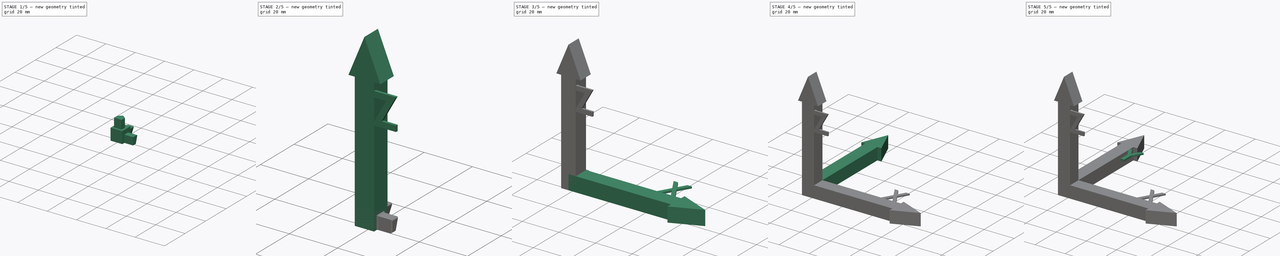
[diagram: build sequence overview — one tinted view per stage of 5, left to right]
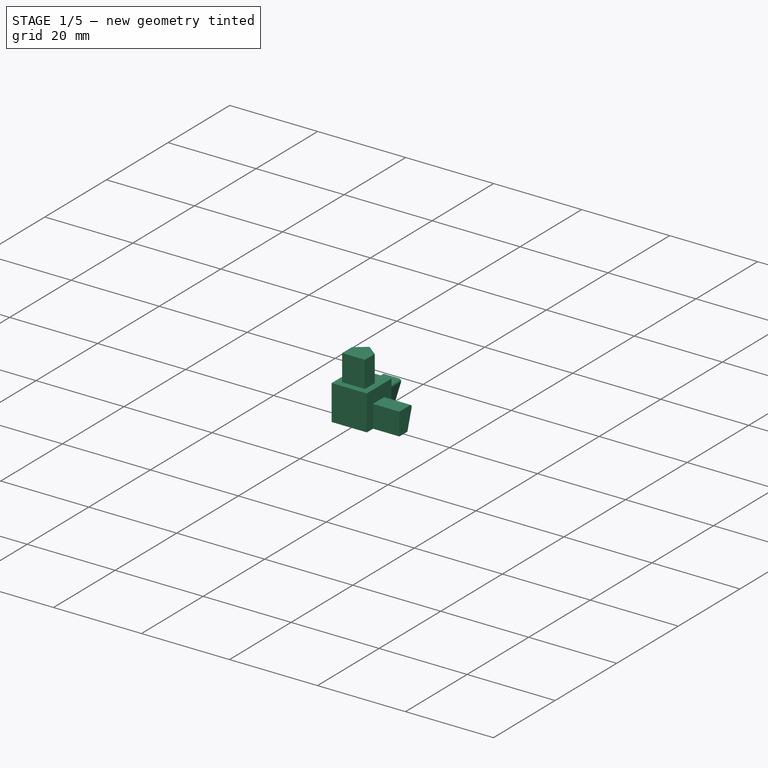
[diagram: stage 1 of 5 — iso view after this stage's code; geometry added in this stage tinted green]
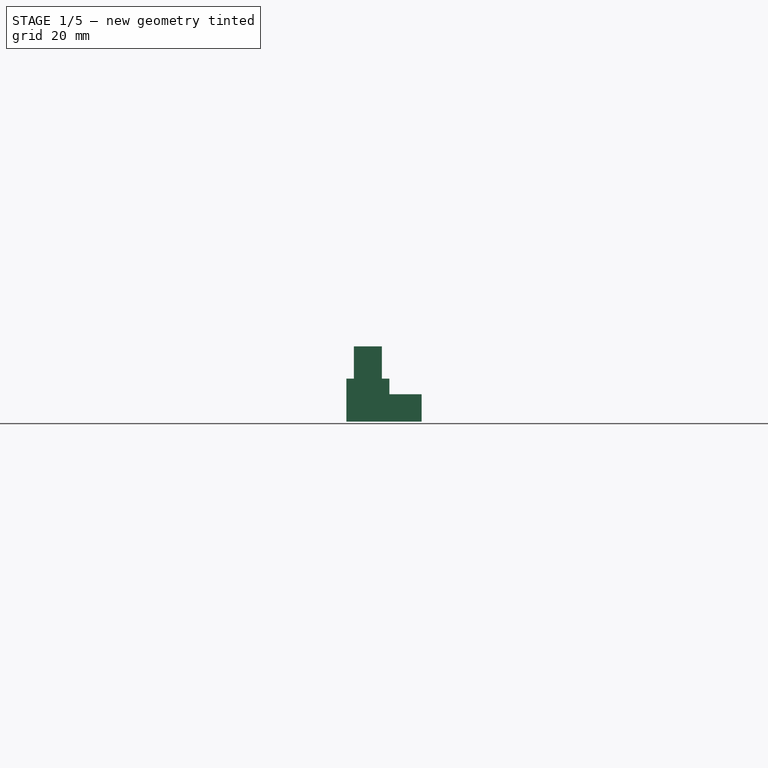
[diagram: stage 1 of 5 — front view after this stage's code; geometry added in this stage tinted green]
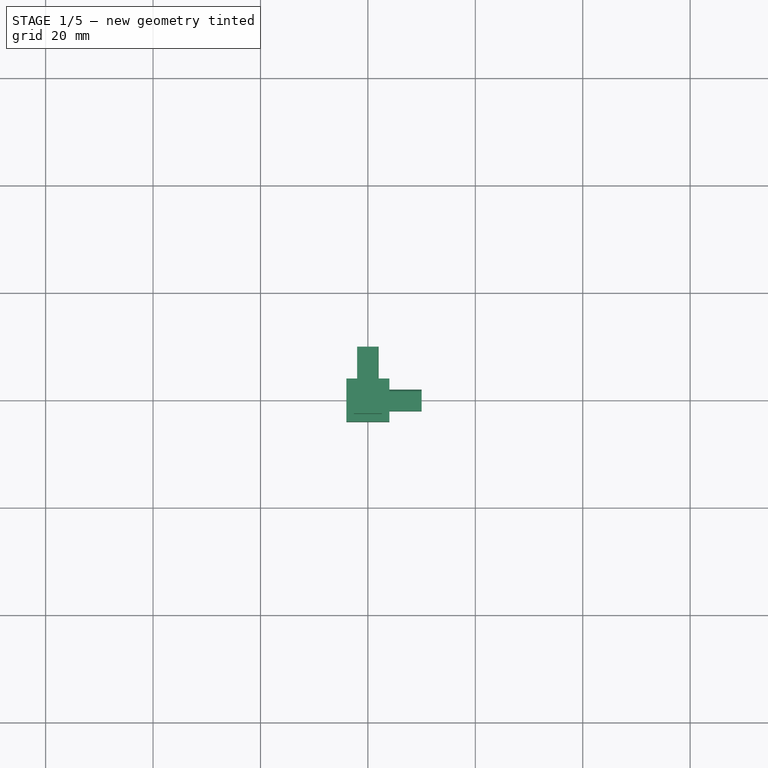
[diagram: stage 1 of 5 — top view after this stage's code; geometry added in this stage tinted green]
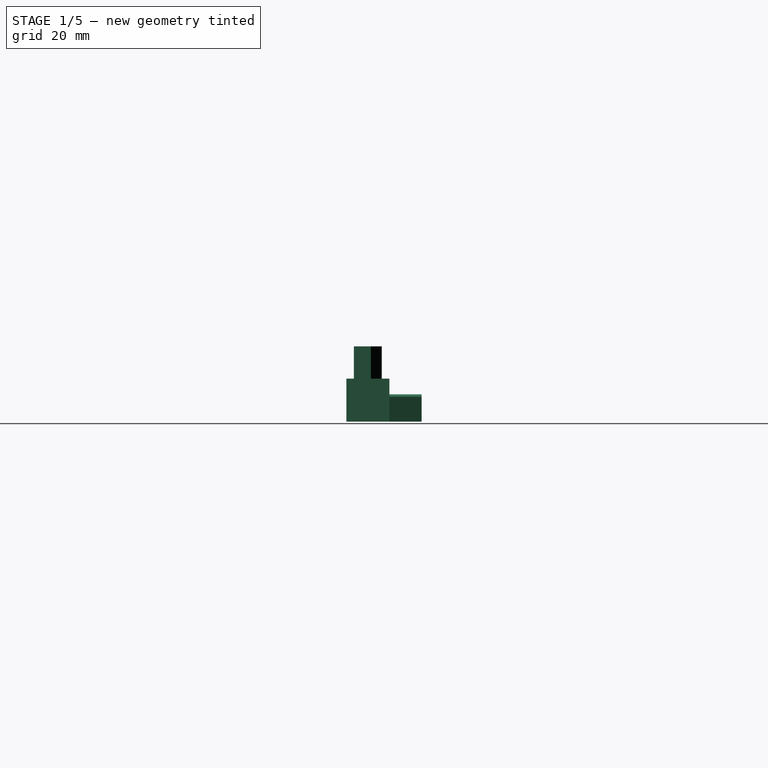
[diagram: stage 1 of 5 — right view after this stage's code; geometry added in this stage tinted green]
FCSTD DOCUMENT  (FreeCAD 0.19R24367 (Git))
Label: axis-cross
Comment: FreeCAD-models by mgesteiro -- https://github.com/mgesteiro/FreeCAD-models
License: Creative Commons Attribution-ShareAlike
LicenseURL: http://creativecommons.org/licenses/by-sa/4.0/
objects: Sketcher::SketchObject×13, PartDesign::Pad×10, PartDesign::Chamfer×8, PartDesign::Body×4, PartDesign::Pocket×3, Spreadsheet::Sheet×1
note: 59 computed .brp shape members not serialized (recipe doc carries the construction recipe); baked Part::Feature solids carry a one-line shape summary decoded from their .brp

FEATURE [PartDesign::Pad] Pad006  label="Pad-joint-box"
  Direction = (1,1,1)
  Length = 8
  Length2 = 100
  Profile = -> Sketch011
  Refine = true
  Type = 0
FEATURE [Sketcher::SketchObject] Sketch012  label="Sketch-shank-X"
  FullyConstrained = true
  MapMode = 5
  Placement = pos=(4,0,0) rot=(0.57735,0.57735,0.57735;2.0944rad)
  Support = -> [Pad006]
  expr: Constraints[22] = Spreadsheet.xtolerance
  expr: Constraints[24] = Spreadsheet.xtolerance
  sketch-geometry (9):
    g0: LineSegment StartX=-2.1 StartY=0 StartZ=0 EndX=-2.1 EndY=5.2 EndZ=0
    g1: LineSegment StartX=-2.1 StartY=5.2 StartZ=0 EndX=1.5 EndY=5.2 EndZ=0
    g2: LineSegment StartX=2.07301 StartY=4.42208 StartZ=0 EndX=0.7 EndY=0 EndZ=0
    g3: ArcOfCircle CenterX=1.5 CenterY=4.6 CenterZ=0 NormalX=0 NormalY=0 NormalZ=1 AngleXU=0 Radius=0.6 StartAngle=5.98213 EndAngle=7.85398
    g4: LineSegment StartX=-2 StartY=0 StartZ=0 EndX=-2 EndY=5.1 EndZ=0
    g5: LineSegment StartX=-2 StartY=5.1 StartZ=0 EndX=1.5 EndY=5.1 EndZ=0
    g6: ArcOfCircle CenterX=1.5 CenterY=4.6 CenterZ=0 NormalX=0 NormalY=0 NormalZ=1 AngleXU=0 Radius=0.5 StartAngle=5.98213 EndAngle=7.85398
    g7: LineSegment StartX=1.97751 StartY=4.45174 StartZ=0 EndX=0.595291 EndY=0 EndZ=0
    g8: LineSegment StartX=0.595291 StartY=0 StartZ=0 EndX=-2 EndY=0 EndZ=0
  constraints (25):
    c: Coincident(g0,g1)
    c: DistanceX(g0,g2) = 2.8
    c: Vertical(g0)
    c: Tangent(g1,g3) = 1.5708
    c: Tangent(g2,g3) = 1.5708
    c: DistanceY(g0,g0) = 5.2
    c: Radius(g3) = 0.6
    c: Horizontal(g1)
    c: DistanceX(g1,g1) = 3.6
    c: PointOnObject(g0,g-1)
    c: PointOnObject(g2,g-1)
    c: DistanceX(g0) = -2.1
    c: PointOnObject(g4,g-1)
    c: Vertical(g4)
    c: Coincident(g4,g5)
    c: Horizontal(g5)
    c: Tangent(g5,g6) = 1.5708
    c: Tangent(g6,g7) = 1.5708
    c: Coincident(g7,g8)
    c: Coincident(g8,g4)
    c: Horizontal(g8)
    c: Coincident(g3,g6)
    c: DistanceX(g0,g4) = 0.1
    c: Parallel(g7,g2)
    c: DistanceY(g4,g0) = 0.1
FEATURE [PartDesign::Pad] Pad007  label="Pad-shank-X"
  BaseFeature = -> Pad006
  Direction = (1,1,1)
  Length = 6
  Length2 = 100
  Profile = -> Sketch012
  Refine = true
  Type = 0
FEATURE [Sketcher::SketchObject] Sketch013  label="Sketch-shank-Y"
  FullyConstrained = true
  MapMode = 5
  Placement = pos=(0,4,0) rot=(0,0.707107,0.707107;3.14159rad)
  Support = -> [Pad007]
  expr: Constraints[23] = Spreadsheet.ytolerance
  expr: Constraints[24] = Spreadsheet.ytolerance
  sketch-geometry (9):
    g0: LineSegment StartX=2.1 StartY=0 StartZ=0 EndX=2.1 EndY=5.2 EndZ=0
    g1: LineSegment StartX=2.1 StartY=5.2 StartZ=0 EndX=-1.5 EndY=5.2 EndZ=0
    g2: LineSegment StartX=-2.07301 StartY=4.42208 StartZ=0 EndX=-0.7 EndY=0 EndZ=0
    g3: ArcOfCircle CenterX=-1.5 CenterY=4.6 CenterZ=0 NormalX=0 NormalY=0 NormalZ=1 AngleXU=0 Radius=0.6 StartAngle=1.5708 EndAngle=3.44265
    g4: LineSegment StartX=2 StartY=0 StartZ=0 EndX=2 EndY=5.1 EndZ=0
    g5: LineSegment StartX=2 StartY=5.1 StartZ=0 EndX=-1.5 EndY=5.1 EndZ=0
    g6: ArcOfCircle CenterX=-1.5 CenterY=4.6 CenterZ=0 NormalX=0 NormalY=0 NormalZ=1 AngleXU=0 Radius=0.5 StartAngle=1.5708 EndAngle=3.44265
    g7: LineSegment StartX=-1.97751 StartY=4.45174 StartZ=0 EndX=-0.595291 EndY=0 EndZ=0
    g8: LineSegment StartX=-0.595291 StartY=0 StartZ=0 EndX=2 EndY=0 EndZ=0
  constraints (25):
    c: Coincident(g0,g1)
    c: DistanceX(g2,g0) = 2.8
    c: PointOnObject(g0,g-1)
    c: Vertical(g0)
    c: Horizontal(g1)
    c: DistanceY(g0,g0) = 5.2
    c: Tangent(g2,g3) = -1.5708
    c: Tangent(g1,g3) = -1.5708
    c: Radius(g3) = 0.6
    c: DistanceX(g1,g1) = 3.6
    c: DistanceX(g-1,g0) = 2.1
    c: PointOnObject(g2,g-1)
    c: PointOnObject(g4,g-1)
    c: Vertical(g4)
    c: Coincident(g4,g5)
    c: Horizontal(g5)
    c: Tangent(g5,g6) = -1.5708
    c: Tangent(g6,g7) = -1.5708
    c: Coincident(g7,g8)
    c: Coincident(g8,g4)
    c: Horizontal(g8)
    c: Parallel(g7,g2)
    c: Coincident(g3,g6)
    c: DistanceX(g4,g0) = 0.1
    c: DistanceY(g4,g0) = 0.1
FEATURE [PartDesign::Pad] Pad008  label="Pad-shank-Y"
  BaseFeature = -> Pad007
  Direction = (1,1,1)
  Length = 6
  Length2 = 100
  Profile = -> Sketch013
  Refine = true
  Type = 0
FEATURE [Sketcher::SketchObject] Sketch016  label="Sketch-shank-Z"
  FullyConstrained = true
  MapMode = 5
  Placement = pos=(0,0,8) rot=(0,0,1;0rad)
  Support = -> [Pad008]
  expr: Constraints[28] = Spreadsheet.ztolerance
  expr: Constraints[29] = Spreadsheet.ztolerance
  expr: Constraints[34] = Spreadsheet.ztolerance
  sketch-geometry (13):
    g0: LineSegment StartX=-2.7 StartY=0.6 StartZ=0 EndX=2.7 EndY=0.6 EndZ=0
    g1: LineSegment StartX=2.7 StartY=0.6 StartZ=0 EndX=2.7 EndY=-2.7 EndZ=0
    g2: LineSegment StartX=2.7 StartY=-2.7 StartZ=0 EndX=-2.7 EndY=-2.7 EndZ=0
    g3: LineSegment StartX=-2.7 StartY=-2.7 StartZ=0 EndX=-2.7 EndY=0.6 EndZ=0
    g4: LineSegment StartX=-2.7 StartY=0.6 StartZ=0 EndX=0 EndY=2.7 EndZ=0
    g5: LineSegment StartX=0 StartY=2.7 StartZ=0 EndX=2.7 EndY=0.6 EndZ=0
    g6: LineSegment StartX=0 StartY=2.7 StartZ=0 EndX=0 EndY=-2.7 EndZ=0
    g7: LineSegment StartX=-2.6 StartY=-2.6 StartZ=0 EndX=-2.6 EndY=0.551092 EndZ=0
    g8: LineSegment StartX=-2.6 StartY=0.551092 StartZ=0 EndX=0 EndY=2.57331 EndZ=0
    g9: LineSegment StartX=0 StartY=2.57331 StartZ=0 EndX=2.6 EndY=0.551092 EndZ=0
    g10: LineSegment StartX=2.6 StartY=0.551092 StartZ=0 EndX=2.6 EndY=-2.6 EndZ=0
    g11: LineSegment StartX=2.6 StartY=-2.6 StartZ=0 EndX=-2.6 EndY=-2.6 EndZ=0
    g12: LineSegment StartX=2.6 StartY=0.551092 StartZ=0 EndX=2.66139 EndY=0.630027 EndZ=0
  constraints (35):
    c: Coincident(g0,g1)
    c: Coincident(g1,g2)
    c: Coincident(g2,g3)
    c: Coincident(g3,g0)
    c: Horizontal(g0)
    c: Vertical(g1)
    c: Vertical(g3)
    c: DistanceX(g2,g2) = 5.4
    c: DistanceY(g1,g1) = 3.3
    c: Symmetric(g2,g1,g-2)
    c: Coincident(g3,g4)
    c: PointOnObject(g4,g-2)
    c: Coincident(g4,g5)
    c: Coincident(g5,g1)
    c: Coincident(g6,g4)
    c: PointOnObject(g6,g2)
    c: Symmetric(g6,g4,g-1)
    c: DistanceY(g2,g4) = 5.4
    c: Vertical(g7)
    c: Coincident(g7,g8)
    c: PointOnObject(g8,g6)
    c: Coincident(g8,g9)
    c: Coincident(g9,g10)
    c: Vertical(g10)
    c: Coincident(g10,g11)
    c: Coincident(g11,g7)
    c: Horizontal(g11)
    c: Symmetric(g7,g9,g6)
    c: DistanceX(g2,g7) = 0.1
    c: DistanceY(g2,g7) = 0.1
    c: Parallel(g8,g4)
    c: Coincident(g12,g9)
    c: PointOnObject(g12,g5)
    c: Perpendicular(g5,g12)
    c: Distance(g12) = 0.1
FEATURE [PartDesign::Pad] Pad009  label="Pad-shank-Z"
  BaseFeature = -> Pad008
  Direction = (1,1,1)
  Length = 6
  Length2 = 100
  Profile = -> Sketch016
  Refine = true
  Type = 0
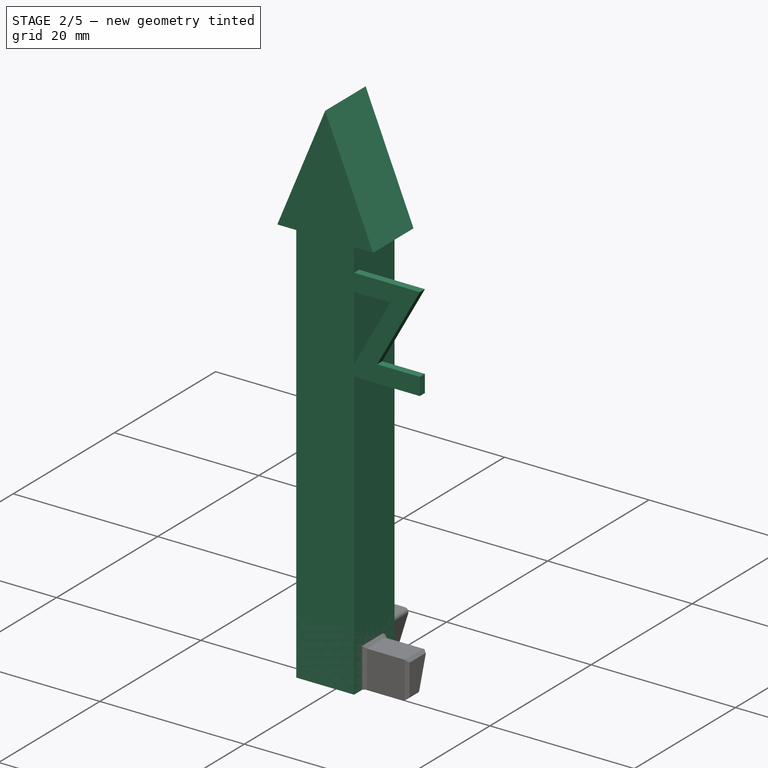
[diagram: stage 2 of 5 — iso view after this stage's code; geometry added in this stage tinted green]
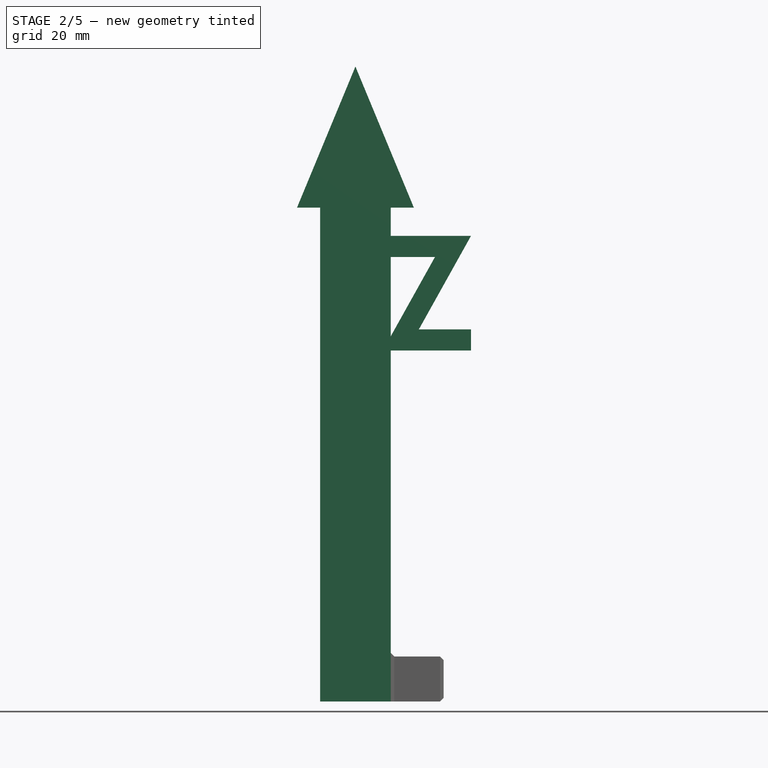
[diagram: stage 2 of 5 — front view after this stage's code; geometry added in this stage tinted green]
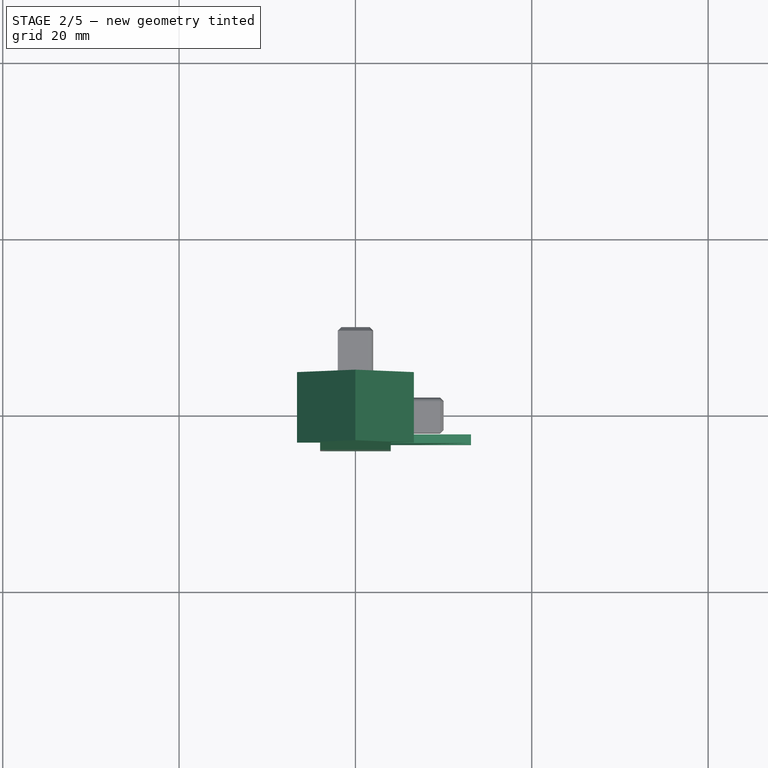
[diagram: stage 2 of 5 — top view after this stage's code; geometry added in this stage tinted green]
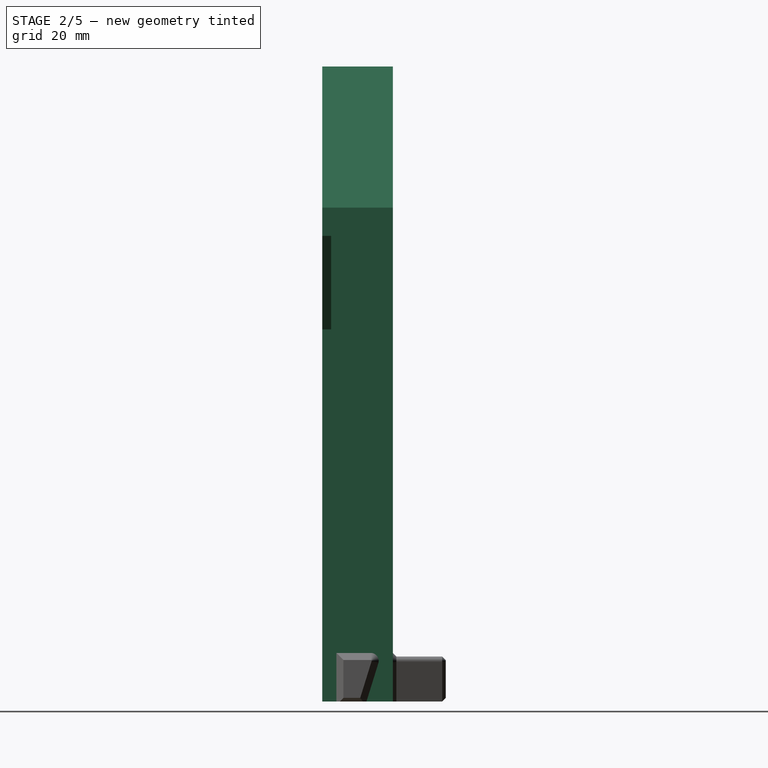
[diagram: stage 2 of 5 — right view after this stage's code; geometry added in this stage tinted green]
FEATURE [Sketcher::SketchObject] Sketch002  label="Sketc-Z-axis"
  FullyConstrained = false
  MapMode = 5
  Placement = pos=(0,0,0) rot=(1,0,0;1.5708rad)
  Support = -> [XZ_Plane002]
  sketch-geometry (9):
    g0: LineSegment StartX=-4 StartY=0 StartZ=0 EndX=4 EndY=0 EndZ=0
    g1: LineSegment StartX=4 StartY=0 StartZ=0 EndX=4 EndY=56 EndZ=0
    g2: LineSegment StartX=4 StartY=56 StartZ=0 EndX=6.62742 EndY=56 EndZ=0
    g3: LineSegment StartX=6.62742 StartY=56 StartZ=0 EndX=0 EndY=72 EndZ=0
    g4: LineSegment StartX=0 StartY=72 StartZ=0 EndX=-6.62742 EndY=56 EndZ=0
    g5: LineSegment StartX=-6.62742 StartY=56 StartZ=0 EndX=-4 EndY=56 EndZ=0
    g6: LineSegment StartX=-4 StartY=56 StartZ=0 EndX=-4 EndY=0 EndZ=0
    g7: LineSegment StartX=0 StartY=72 StartZ=0 EndX=0 EndY=0 EndZ=0
    g8: LineSegment StartX=0 StartY=0 StartZ=0 EndX=-4 EndY=0 EndZ=0
  constraints (23):
    c: PointOnObject(g0,g-1)
    c: Coincident(g0,g1)
    c: Vertical(g1)
    c: Coincident(g1,g2)
    c: Horizontal(g2)
    c: Coincident(g2,g3)
    c: PointOnObject(g3,g-2)
    c: Coincident(g3,g4)
    c: Coincident(g4,g5)
    c: Horizontal(g5)
    c: Coincident(g5,g6)
    c: Coincident(g6,g0)
    c: Vertical(g6)
    c: Symmetric(g0,g0,g-1)
    c: DistanceX(g0,g0) = 8
    c: Angle(g4,g3) = 0.785398
    c: Symmetric(g4,g2,g-2)
    c: DistanceY(g4,g3) = 16
    c: DistanceY(g0,g3) = 72
    c: Coincident(g7,g3)
    c: Coincident(g7,g-1)
    c: Coincident(g8,g7)
    c: Coincident(g8,g6)
FEATURE [PartDesign::Pad] Pad002  label="Z-axis"
  Direction = (1,1,1)
  Length = 8
  Length2 = 100
  Midplane = true
  Placement = pos=(0,0,0) rot=(1,0,0;1.5708rad)
  Profile = -> Sketch002
  Type = 0
FEATURE [Sketcher::SketchObject] Sketch005  label="Sketch-Z-letter"
  AttachmentOffset = pos=(0,0,4) rot=(0,0,1;0rad)
  ExternalGeometry = -> [Pad002]
  FullyConstrained = false
  MapMode = 5
  Placement = pos=(0,-4,-9e-16) rot=(1,0,0;1.5708rad)
  Support = -> [XZ_Plane002]
  sketch-geometry (14):
    g0: LineSegment StartX=3.10747 StartY=52.8 StartZ=0 EndX=13.1075 EndY=52.8 EndZ=0
    g1: LineSegment StartX=13.1075 StartY=52.8 StartZ=0 EndX=13.1075 EndY=39.8 EndZ=0
    g2: LineSegment StartX=13.1075 StartY=39.8 StartZ=0 EndX=3.10747 EndY=39.8 EndZ=0
    g3: LineSegment StartX=3.10747 StartY=39.8 StartZ=0 EndX=3.10747 EndY=52.8 EndZ=0
    g4: LineSegment StartX=3.10747 StartY=50.4 StartZ=0 EndX=9.0205 EndY=50.4 EndZ=0
    g5: LineSegment StartX=9.0205 StartY=50.4 StartZ=0 EndX=3.10747 EndY=39.8 EndZ=0
    g6: LineSegment StartX=3.10747 StartY=39.8 StartZ=0 EndX=3.10747 EndY=50.4 EndZ=0
    g7: LineSegment StartX=13.1075 StartY=42.2 StartZ=0 EndX=7.19443 EndY=42.2 EndZ=0
    g8: LineSegment StartX=7.19443 StartY=42.2 StartZ=0 EndX=13.1075 EndY=52.8 EndZ=0
    g9: LineSegment StartX=13.1075 StartY=52.8 StartZ=0 EndX=13.1075 EndY=42.2 EndZ=0
    g10: LineSegment StartX=7.19443 StartY=42.2 StartZ=0 EndX=5.09848 EndY=43.3692 EndZ=0
    g11: LineSegment StartX=13.1075 StartY=42.2 StartZ=0 EndX=13.1075 EndY=39.8 EndZ=0
    g12: LineSegment StartX=3.10747 StartY=52.8 StartZ=0 EndX=3.10747 EndY=50.4 EndZ=0
    g13: GeomPoint X=4 Y=41.4 Z=0
  constraints (37):
    c: Coincident(g0,g1)
    c: Coincident(g1,g2)
    c: Coincident(g2,g3)
    c: Coincident(g3,g0)
    c: Horizontal(g0)
    c: Horizontal(g2)
    c: Vertical(g1)
    c: Vertical(g3)
    c: DistanceX(g0,g0) = 10
    c: DistanceY(g1,g1) = 13
    c: PointOnObject(g4,g3)
    c: Horizontal(g4)
    c: Coincident(g4,g5)
    c: Coincident(g5,g2)
    c: Coincident(g5,g6)
    c: Coincident(g6,g4)
    c: PointOnObject(g7,g1)
    c: Horizontal(g7)
    c: Coincident(g7,g8)
    c: Coincident(g8,g0)
    c: Coincident(g8,g9)
    c: Coincident(g9,g7)
    c: Parallel(g5,g8)
    c: Coincident(g10,g7)
    c: PointOnObject(g10,g5)
    c: Perpendicular(g5,g10)
    c: Distance(g10) = 2.4
    c: DistanceY(g4,g0) = 2.4
    c: DistanceY(g1,g7) = 2.4
    c: Coincident(g11,g7)
    c: Coincident(g11,g2)
    c: Coincident(g12,g0)
    c: Coincident(g12,g4)
    c: DistanceY(g0,g-3) = 3.2
    c: PointOnObject(g13,g5)
    c: PointOnObject(g13,g-3)
    c: DistanceY(g2,g13) = 1.6
FEATURE [PartDesign::Pad] Pad005  label="Z-letter"
  BaseFeature = -> Pad002
  Direction = (1,1,1)
  Length = 1
  Length2 = 100
  Placement = pos=(0,0,0) rot=(1,0,0;1.5708rad)
  Profile = -> Sketch005
  Refine = true
  Reversed = true
  Type = 0
FEATURE [PartDesign::Body] Body002  label="Body-z"
  Group = -> [Sketch002,Pad002,Sketch005,Pad005,Chamfer004002002002003,Sketch017,Pocket,Chamfer004002002002006]
  Origin = -> Origin002
  Placement = pos=(0,0,8) rot=(0,0,1;0rad)
  Tip = -> Chamfer004002002002006
FEATURE [PartDesign::Chamfer] Chamfer004002002002007  label="Chamfer-joint"
  Angle = 45
  Base = -> Pad009 [Edge4,Edge39,Edge35,Edge36,Edge2,Edge37,Edge38,Edge30,Edge27]
  BaseFeature = -> Pad009
  ChamferType = 0
  FlipDirection = false
  Size = 0.4
  Size2 = 1
  SupportTransform = false
FEATURE [Spreadsheet::Sheet] Spreadsheet  label="Config"
  cells = A1=Printer tolerance (mm):; B1=Margin between joint shanks walls and arrow's socket internal walls; A2=x-arrow; B2(xtolerance)==0.1mm; A3=y-arrow; B3(ytolerance)==0.1mm; A4=z-arrow; B4(ztolerance)==0.1mm
FEATURE [PartDesign::Chamfer] Chamfer004002002002008  label="Chamfer-endings"
  Angle = 65
  Base = -> Chamfer004002002002007 [Face16,Face12,Face35]
  BaseFeature = -> Chamfer004002002002007
  ChamferType = 0
  FlipDirection = false
  Size = 0.4
  Size2 = 0.4
  SupportTransform = true
FEATURE [PartDesign::Body] Body002002  label="Body-joint"
  Group = -> [Sketch013,Sketch011,Sketch012,Pad006,Pad007,Pad008,Sketch016,Pad009,Chamfer004002002002007,Chamfer004002002002008]
  Origin = -> Origin003
  Tip = -> Chamfer004002002002008
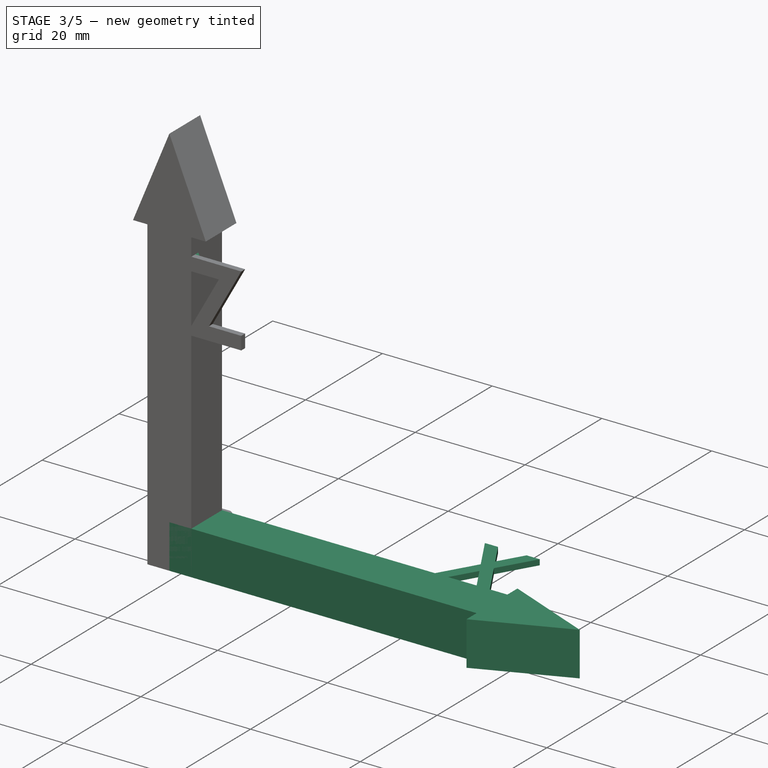
[diagram: stage 3 of 5 — iso view after this stage's code; geometry added in this stage tinted green]
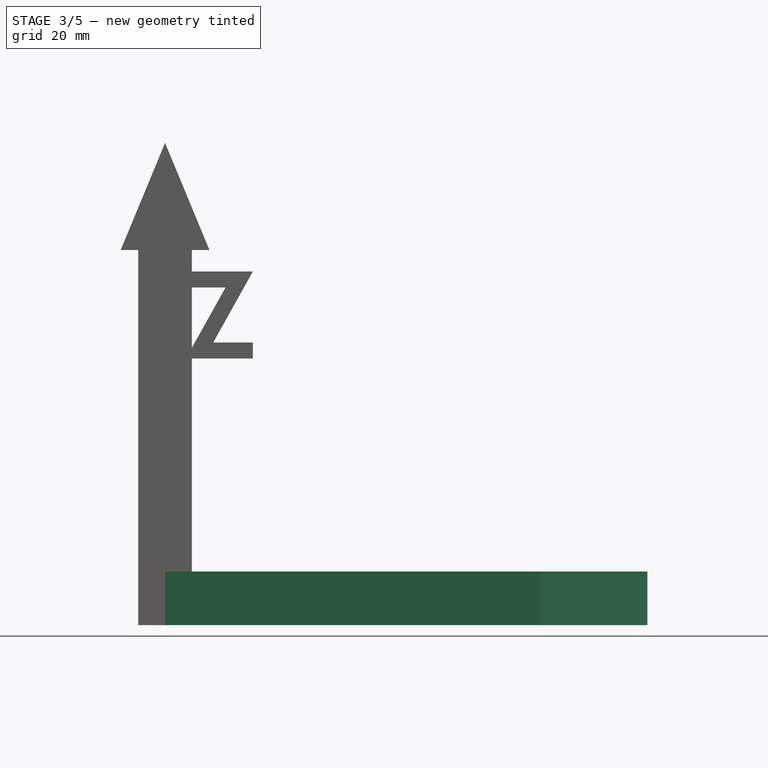
[diagram: stage 3 of 5 — front view after this stage's code; geometry added in this stage tinted green]
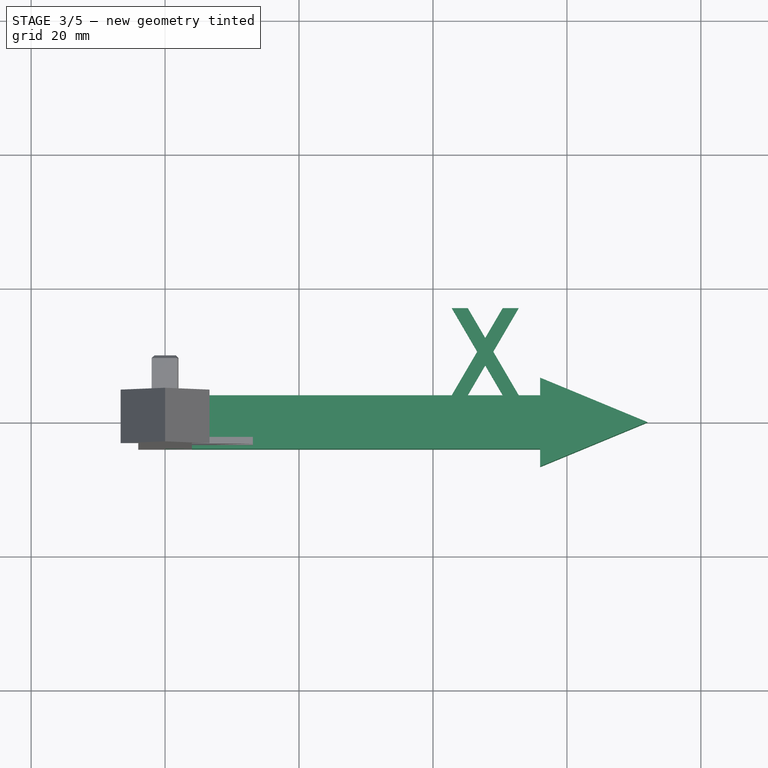
[diagram: stage 3 of 5 — top view after this stage's code; geometry added in this stage tinted green]
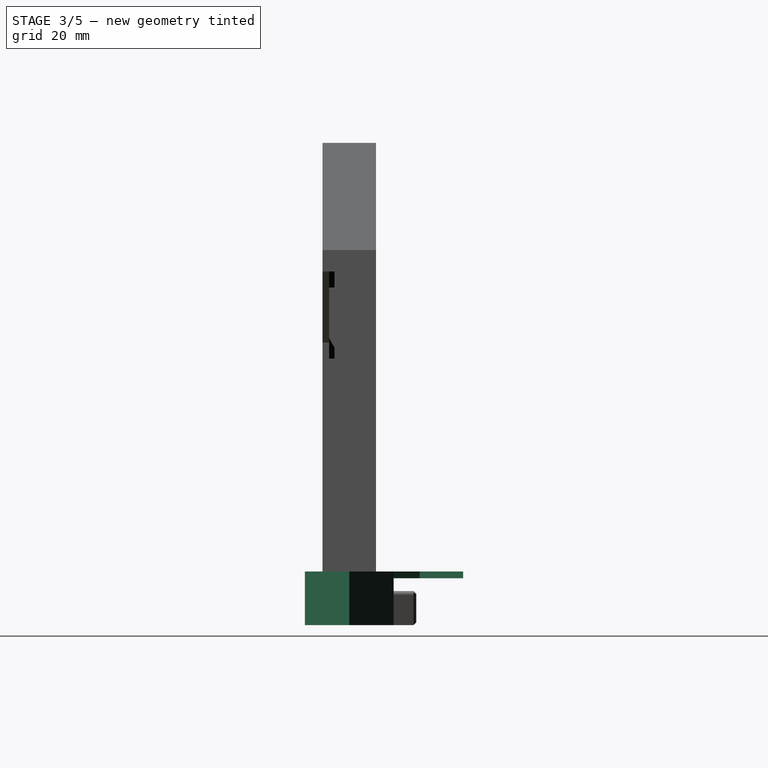
[diagram: stage 3 of 5 — right view after this stage's code; geometry added in this stage tinted green]
FEATURE [Sketcher::SketchObject] Sketch  label="Sketch-X-axis"
  FullyConstrained = false
  MapMode = 5
  Support = -> [XY_Plane]
  sketch-geometry (7):
    g0: LineSegment StartX=0 StartY=4 StartZ=0 EndX=56 EndY=4 EndZ=0
    g1: LineSegment StartX=72 StartY=0 StartZ=0 EndX=56 EndY=6.62742 EndZ=0
    g2: LineSegment StartX=56 StartY=6.62742 StartZ=0 EndX=56 EndY=4 EndZ=0
    g3: LineSegment StartX=56 StartY=-6.62742 StartZ=0 EndX=72 EndY=0 EndZ=0
    g4: LineSegment StartX=56 StartY=-4 StartZ=0 EndX=0 EndY=-4 EndZ=0
    g5: LineSegment StartX=56 StartY=-4 StartZ=0 EndX=56 EndY=-6.62742 EndZ=0
    g6: LineSegment StartX=0 StartY=4 StartZ=0 EndX=0 EndY=-4 EndZ=0
  constraints (19):
    c: PointOnObject(g1,g-1)
    c: Coincident(g1,g2)
    c: Coincident(g5,g3)
    c: Coincident(g3,g1)
    c: Symmetric(g1,g5,g-1)
    c: Coincident(g2,g0)
    c: Coincident(g5,g4)
    c: Tangent(g2,g5)
    c: Angle(g1,g3) = 0.785398
    c: DistanceX(g1,g1) = 16
    c: Horizontal(g4)
    c: DistanceY(g4,g0) = 8
    c: DistanceX(g4,g1) = 72
    c: Horizontal(g0)
    c: Symmetric(g0,g4,g-1)
    c: Coincident(g6,g0)
    c: Coincident(g6,g4)
    c: Vertical(g6)
    c: PointOnObject(g-1,g6)
FEATURE [Sketcher::SketchObject] Sketch001  label="Sketch-Y-axis"
  FullyConstrained = false
  MapMode = 5
  Support = -> [XY_Plane001]
  sketch-geometry (7):
    g0: LineSegment StartX=4 StartY=0 StartZ=0 EndX=4 EndY=56 EndZ=0
    g1: LineSegment StartX=4 StartY=56 StartZ=0 EndX=6.62742 EndY=56 EndZ=0
    g2: LineSegment StartX=6.62742 StartY=56 StartZ=0 EndX=0 EndY=72 EndZ=0
    g3: LineSegment StartX=0 StartY=72 StartZ=0 EndX=-6.62742 EndY=56 EndZ=0
    g4: LineSegment StartX=-6.62742 StartY=56 StartZ=0 EndX=-4 EndY=56 EndZ=0
    g5: LineSegment StartX=-4 StartY=56 StartZ=0 EndX=-4 EndY=0 EndZ=0
    g6: LineSegment StartX=-4 StartY=0 StartZ=0 EndX=4 EndY=0 EndZ=0
  constraints (19):
    c: Vertical(g0)
    c: Coincident(g0,g1)
    c: Horizontal(g1)
    c: Coincident(g1,g2)
    c: PointOnObject(g2,g-2)
    c: Coincident(g2,g3)
    c: Coincident(g3,g4)
    c: Coincident(g4,g5)
    c: Angle(g3,g2) = 0.785398
    c: Vertical(g5)
    c: DistanceY(g5,g2) = 72
    c: DistanceY(g3,g2) = 16
    c: Symmetric(g3,g1,g-2)
    c: Coincident(g0,g6)
    c: DistanceX(g5,g0) = 8
    c: Symmetric(g4,g0,g-2)
    c: Coincident(g5,g6)
    c: PointOnObject(g-1,g6)
    c: Horizontal(g6)
FEATURE [PartDesign::Pad] Pad  label="X-axis"
  Direction = (1,1,1)
  Length = 8
  Length2 = 100
  Profile = -> Sketch
  Type = 0
FEATURE [Sketcher::SketchObject] Sketch003  label="Sketch-X-letter"
  AttachmentOffset = pos=(0,0,8) rot=(0,0,1;0rad)
  ExternalGeometry = -> [Pad]
  FullyConstrained = false
  MapMode = 5
  Placement = pos=(0,0,8) rot=(0,0,1;0rad)
  Support = -> [XY_Plane]
  sketch-geometry (22):
    g0: LineSegment StartX=42.8 StartY=4 StartZ=0 EndX=52.8 EndY=4 EndZ=0
    g1: LineSegment StartX=52.8 StartY=4 StartZ=0 EndX=52.8 EndY=17 EndZ=0
    g2: LineSegment StartX=52.8 StartY=17 StartZ=0 EndX=42.8 EndY=17 EndZ=0
    g3: LineSegment StartX=42.8 StartY=17 StartZ=0 EndX=42.8 EndY=4 EndZ=0
    g4: LineSegment StartX=42.8 StartY=17 StartZ=0 EndX=50.4 EndY=4 EndZ=0
    g5: LineSegment StartX=45.2 StartY=17 StartZ=0 EndX=52.8 EndY=4 EndZ=0
    g6: LineSegment StartX=52.8 StartY=17 StartZ=0 EndX=45.2 EndY=4 EndZ=0
    g7: LineSegment StartX=50.4 StartY=17 StartZ=0 EndX=42.8 EndY=4 EndZ=0
    g8: LineSegment StartX=52.8 StartY=17 StartZ=0 EndX=49 EndY=10.5 EndZ=0
    g9: LineSegment StartX=49 StartY=10.5 StartZ=0 EndX=52.8 EndY=4 EndZ=0
    g10: LineSegment StartX=50.4 StartY=4 StartZ=0 EndX=47.8 EndY=8.44737 EndZ=0
    g11: LineSegment StartX=47.8 StartY=8.44737 StartZ=0 EndX=45.2 EndY=4 EndZ=0
    g12: LineSegment StartX=45.2 StartY=17 StartZ=0 EndX=50.4 EndY=17 EndZ=0
    g13: LineSegment StartX=50.4 StartY=17 StartZ=0 EndX=47.8 EndY=12.5526 EndZ=0
    g14: LineSegment StartX=47.8 StartY=12.5526 StartZ=0 EndX=45.2 EndY=17 EndZ=0
    g15: LineSegment StartX=45.2 StartY=4 StartZ=0 EndX=50.4 EndY=4 EndZ=0
    g16: LineSegment StartX=42.8 StartY=17 StartZ=0 EndX=46.6 EndY=10.5 EndZ=0
    g17: LineSegment StartX=46.6 StartY=10.5 StartZ=0 EndX=42.8 EndY=4 EndZ=0
    g18: LineSegment StartX=42.8 StartY=17 StartZ=0 EndX=45.2 EndY=17 EndZ=0
    g19: LineSegment StartX=50.4 StartY=17 StartZ=0 EndX=52.8 EndY=17 EndZ=0
    g20: LineSegment StartX=42.8 StartY=4 StartZ=0 EndX=45.2 EndY=4 EndZ=0
    g21: LineSegment StartX=50.4 StartY=4 StartZ=0 EndX=52.8 EndY=4 EndZ=0
  constraints (55):
    c: Coincident(g0,g1)
    c: Coincident(g1,g2)
    c: Coincident(g2,g3)
    c: Coincident(g3,g0)
    c: Horizontal(g0)
    c: Horizontal(g2)
    c: Vertical(g1)
    c: DistanceX(g2,g2) = 10
    c: DistanceY(g3,g3) = 13
    c: Vertical(g3)
    c: DistanceX(g0,g6) = 2.4
    c: Coincident(g4,g2)
    c: PointOnObject(g5,g2)
    c: Coincident(g5,g0)
    c: Coincident(g6,g1)
    c: PointOnObject(g7,g2)
    c: PointOnObject(g8,g5)
    c: Coincident(g8,g9)
    c: PointOnObject(g10,g6)
    c: Coincident(g10,g11)
    c: PointOnObject(g10,g4)
    c: PointOnObject(g8,g6)
    c: Coincident(g8,g1)
    c: Coincident(g7,g0)
    c: DistanceX(g7,g8) = 2.4
    c: DistanceX(g2,g5) = 2.4
    c: DistanceX(g4,g0) = 2.4
    c: Coincident(g5,g12)
    c: Coincident(g12,g7)
    c: Coincident(g12,g13)
    c: PointOnObject(g13,g5)
    c: Coincident(g13,g14)
    c: Coincident(g14,g12)
    c: PointOnObject(g13,g7)
    c: PointOnObject(g6,g0)
    c: Coincident(g11,g6)
    c: Coincident(g15,g11)
    c: Coincident(g15,g10)
    c: Horizontal(g15)
    c: Coincident(g10,g4)
    c: Coincident(g2,g16)
    c: PointOnObject(g16,g7)
    c: Coincident(g16,g17)
    c: Coincident(g17,g0)
    c: PointOnObject(g16,g4)
    c: Coincident(g9,g0)
    c: Coincident(g18,g16)
    c: Coincident(g18,g14)
    c: Coincident(g19,g13)
    c: Coincident(g19,g8)
    c: Coincident(g20,g17)
    c: Coincident(g21,g10)
    c: Coincident(g21,g9)
    c: Coincident(g20,g11)
    c: DistanceX(g9,g-3) = 3.2
FEATURE [PartDesign::Pad] Pad003  label="X-letter"
  BaseFeature = -> Pad
  Direction = (1,1,1)
  Length = 1
  Length2 = 100
  Profile = -> Sketch003
  Refine = true
  Reversed = true
  Type = 0
FEATURE [PartDesign::Chamfer] Chamfer004002002002003  label="Chamfer-Z"
  Angle = 45
  Base = -> Pad005 [Edge12,Edge16]
  BaseFeature = -> Pad005
  ChamferType = 0
  FlipDirection = false
  Placement = pos=(0,0,0) rot=(1,0,0;1.5708rad)
  Size = 0.8
  Size2 = 1
  SupportTransform = true
FEATURE [Sketcher::SketchObject] Sketch017  label="Sketch-socket-Z"
  FullyConstrained = true
  MapMode = 5
  Placement = pos=(0,0,0) rot=(1,0,0;3.14159rad)
  Support = -> [Chamfer004002002002003]
  sketch-geometry (6):
    g0: LineSegment StartX=-2.7 StartY=2.7 StartZ=0 EndX=2.7 EndY=2.7 EndZ=0
    g1: LineSegment StartX=2.7 StartY=2.7 StartZ=0 EndX=2.7 EndY=-0.6 EndZ=0
    g2: LineSegment StartX=-2.7 StartY=-0.6 StartZ=0 EndX=-2.7 EndY=2.7 EndZ=0
    g3: LineSegment StartX=-2.7 StartY=-0.6 StartZ=0 EndX=0 EndY=-2.7 EndZ=0
    g4: LineSegment StartX=0 StartY=-2.7 StartZ=0 EndX=2.7 EndY=-0.6 EndZ=0
    g5: LineSegment StartX=0 StartY=2.7 StartZ=0 EndX=0 EndY=-2.7 EndZ=0
  constraints (16):
    c: Coincident(g0,g1)
    c: Coincident(g2,g0)
    c: Vertical(g1)
    c: Vertical(g2)
    c: Symmetric(g0,g0,g-2)
    c: Coincident(g2,g3)
    c: PointOnObject(g3,g-2)
    c: Coincident(g1,g4)
    c: Equal(g2,g1)
    c: Coincident(g3,g4)
    c: DistanceX(g0,g0) = 5.4
    c: PointOnObject(g5,g0)
    c: Coincident(g5,g3)
    c: DistanceY(g5,g5) = 5.4
    c: Symmetric(g5,g3,g-1)
    c: DistanceY(g1,g1) = 3.3
FEATURE [PartDesign::Pocket] Pocket  label="Pocket-socket-Z"
  BaseFeature = -> Chamfer004002002002003
  Length = 6.2
  Length2 = 100
  Placement = pos=(0,0,0) rot=(1,0,0;1.5708rad)
  Profile = -> Sketch017
  Type = 0
FEATURE [PartDesign::Body] Body  label="Body-x"
  Group = -> [Sketch,Pad,Sketch003,Pad003,Chamfer004002002002002,Sketch015,Pocket004,Chamfer004002002002005]
  Origin = -> Origin
  Placement = pos=(4,0,0) rot=(0,0,1;0rad)
  Tip = -> Chamfer004002002002005
FEATURE [PartDesign::Chamfer] Chamfer004002002002006  label="Chamfer-socket-Z"
  Angle = 45
  Base = -> Pocket [Edge47,Edge48,Edge49,Edge45,Edge46]
  BaseFeature = -> Pocket
  ChamferType = 1
  FlipDirection = false
  Placement = pos=(0,0,0) rot=(1,0,0;1.5708rad)
  Size = 0.4
  Size2 = 0.8
  SupportTransform = false
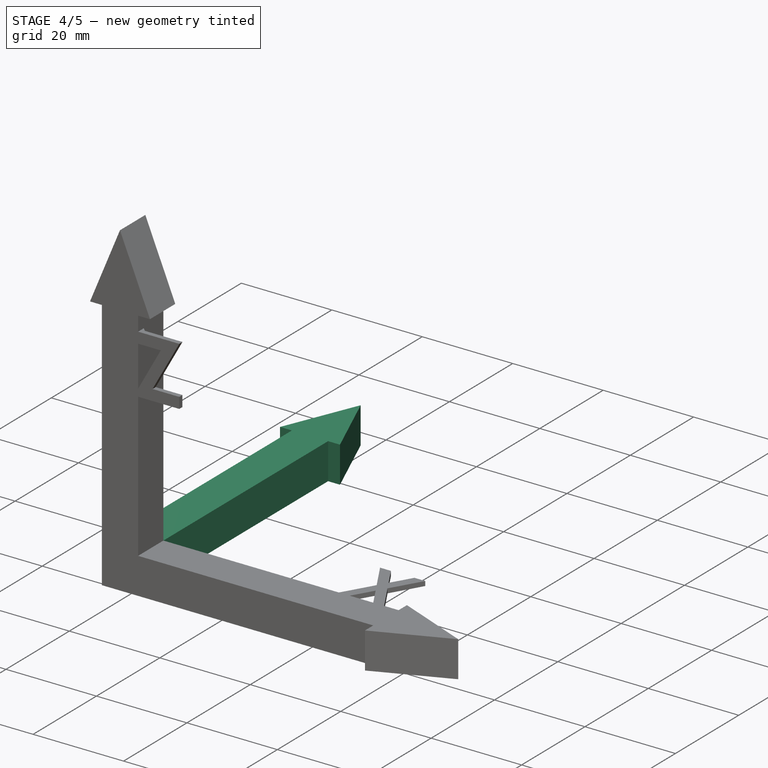
[diagram: stage 4 of 5 — iso view after this stage's code; geometry added in this stage tinted green]
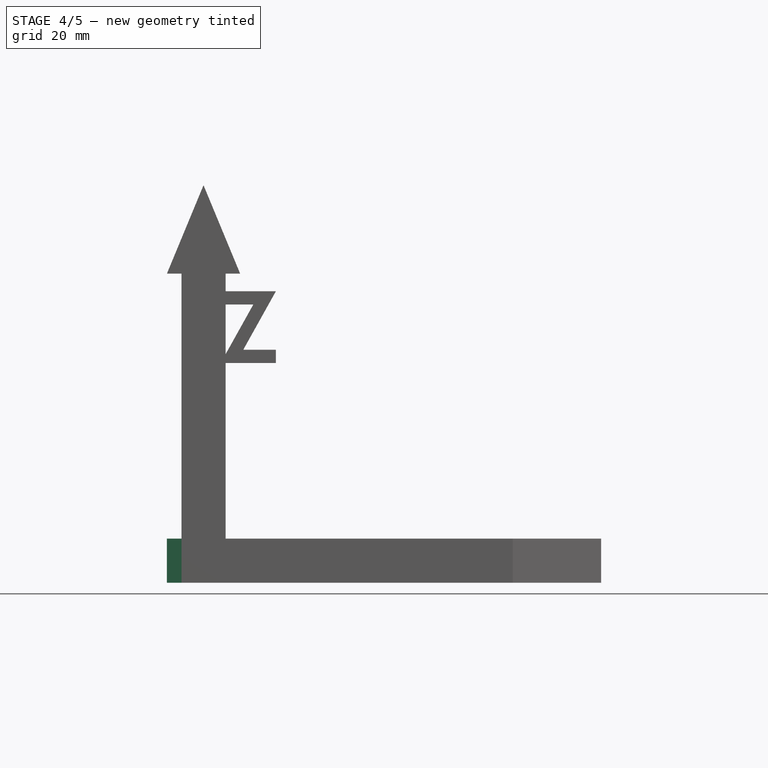
[diagram: stage 4 of 5 — front view after this stage's code; geometry added in this stage tinted green]
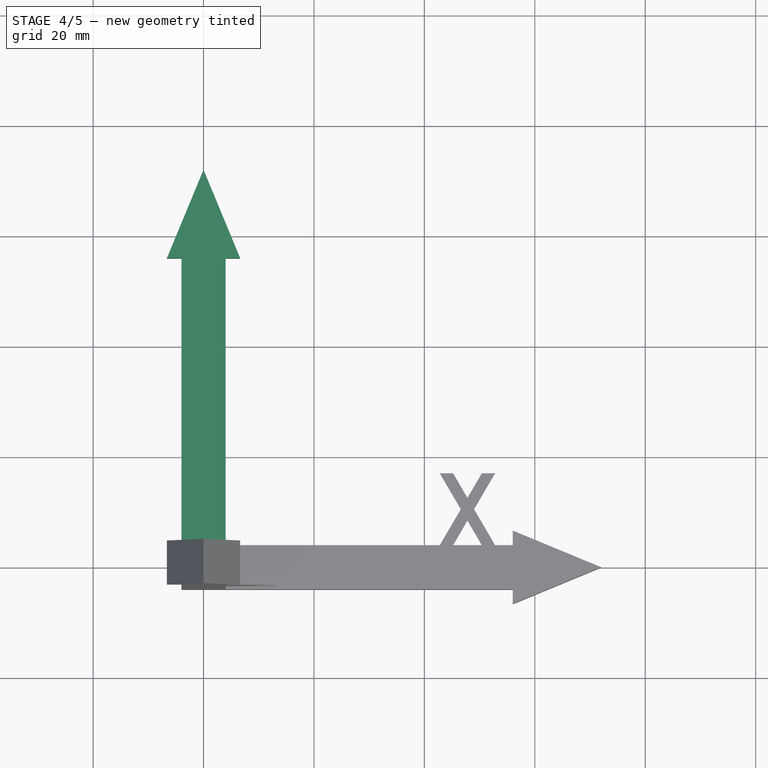
[diagram: stage 4 of 5 — top view after this stage's code; geometry added in this stage tinted green]
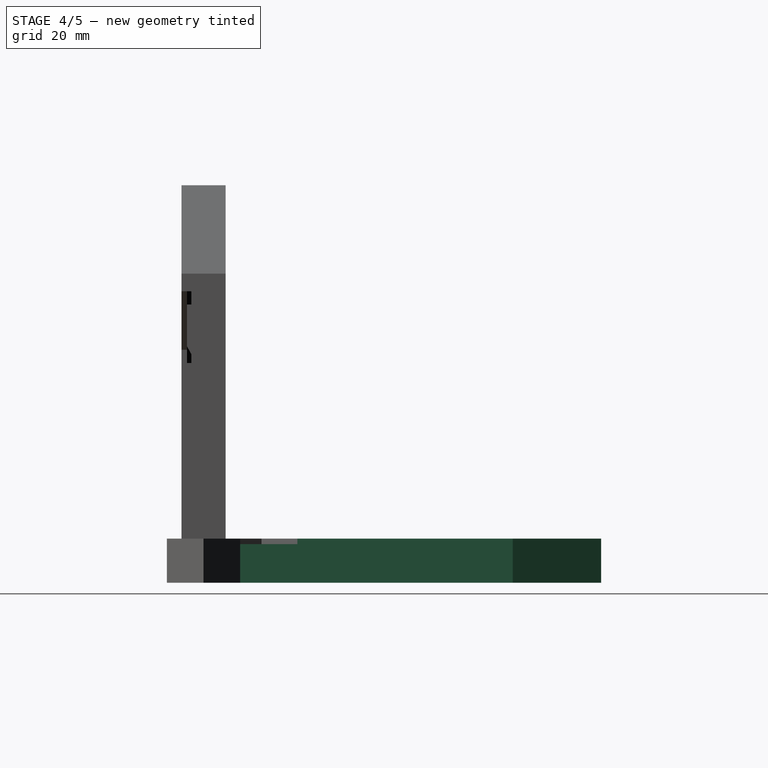
[diagram: stage 4 of 5 — right view after this stage's code; geometry added in this stage tinted green]
FEATURE [PartDesign::Pad] Pad001  label="Y-axis"
  Direction = (1,1,1)
  Length = 8
  Length2 = 100
  Profile = -> Sketch001
  Type = 0
FEATURE [PartDesign::Chamfer] Chamfer004002002002002  label="Chamfer-X-letter"
  Angle = 45
  Base = -> Pad003 [Edge5,Edge9]
  BaseFeature = -> Pad003
  ChamferType = 0
  FlipDirection = false
  Size = 0.8
  Size2 = 1
  SupportTransform = true
FEATURE [Sketcher::SketchObject] Sketch015  label="Sketch-socket-X"
  FullyConstrained = true
  MapMode = 5
  Placement = pos=(0,0,0) rot=(0.57735,-0.57735,-0.57735;2.0944rad)
  Support = -> [Chamfer004002002002002]
  sketch-geometry (5):
    g0: LineSegment StartX=2.1 StartY=0 StartZ=0 EndX=2.1 EndY=5.2 EndZ=0
    g1: LineSegment StartX=2.1 StartY=5.2 StartZ=0 EndX=-1.5 EndY=5.2 EndZ=0
    g2: LineSegment StartX=-2.07301 StartY=4.42208 StartZ=0 EndX=-0.7 EndY=0 EndZ=0
    g3: LineSegment StartX=-0.7 StartY=0 StartZ=0 EndX=2.1 EndY=0 EndZ=0
    g4: ArcOfCircle CenterX=-1.5 CenterY=4.6 CenterZ=0 NormalX=0 NormalY=0 NormalZ=1 AngleXU=0 Radius=0.6 StartAngle=1.5708 EndAngle=3.44265
  constraints (14):
    c: Coincident(g0,g1)
    c: Coincident(g2,g3)
    c: Coincident(g3,g0)
    c: PointOnObject(g0,g-1)
    c: Vertical(g0)
    c: Horizontal(g3)
    c: Horizontal(g1)
    c: Tangent(g1,g4) = -1.5708
    c: Tangent(g2,g4) = -1.5708
    c: DistanceX(g3,g3) = 2.8
    c: DistanceX(g0) = 2.1
    c: DistanceY(g0,g0) = 5.2
    c: DistanceX(g1,g1) = 3.6
    c: Radius(g4) = 0.6
FEATURE [PartDesign::Pocket] Pocket004  label="Pocket-socket-X"
  BaseFeature = -> Chamfer004002002002002
  Length = 6.2
  Length2 = 100
  Profile = -> Sketch015
  Refine = true
  Type = 0
FEATURE [PartDesign::Body] Body001  label="Body-y"
  Group = -> [Sketch001,Pad001,Sketch004,Pad004,Chamfer,Sketch014,Pocket003,Chamfer004002002002004]
  Origin = -> Origin001
  Placement = pos=(0,4,0) rot=(0,0,1;0rad)
  Tip = -> Chamfer004002002002004
FEATURE [PartDesign::Chamfer] Chamfer004002002002005  label="Chamfer-socket-X"
  Angle = 45
  Base = -> Pocket004 [Edge58,Edge60]
  BaseFeature = -> Pocket004
  ChamferType = 1
  FlipDirection = false
  Size = 0.4
  Size2 = 0.8
  SupportTransform = false
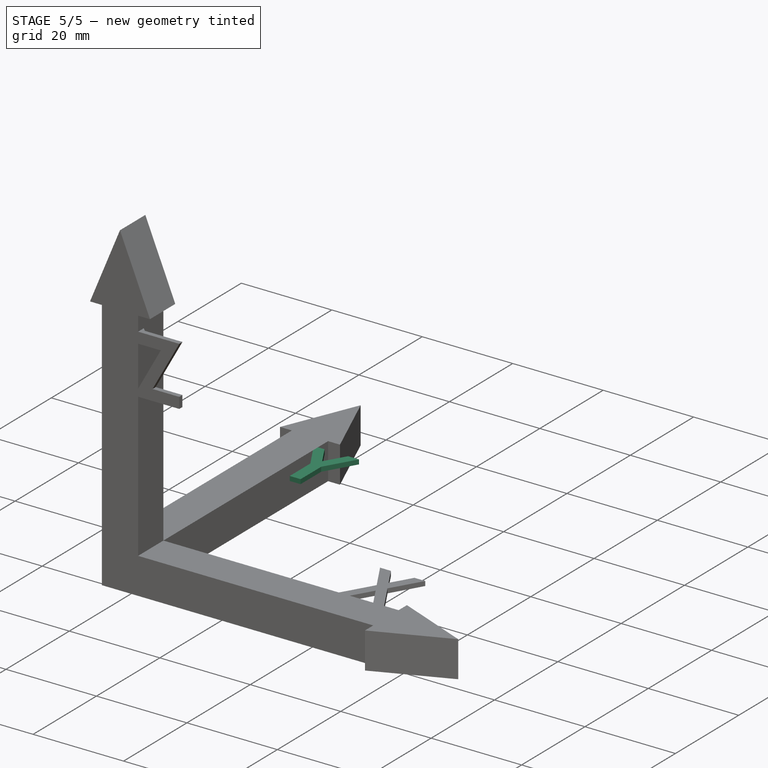
[diagram: stage 5 of 5 — iso view after this stage's code; geometry added in this stage tinted green]
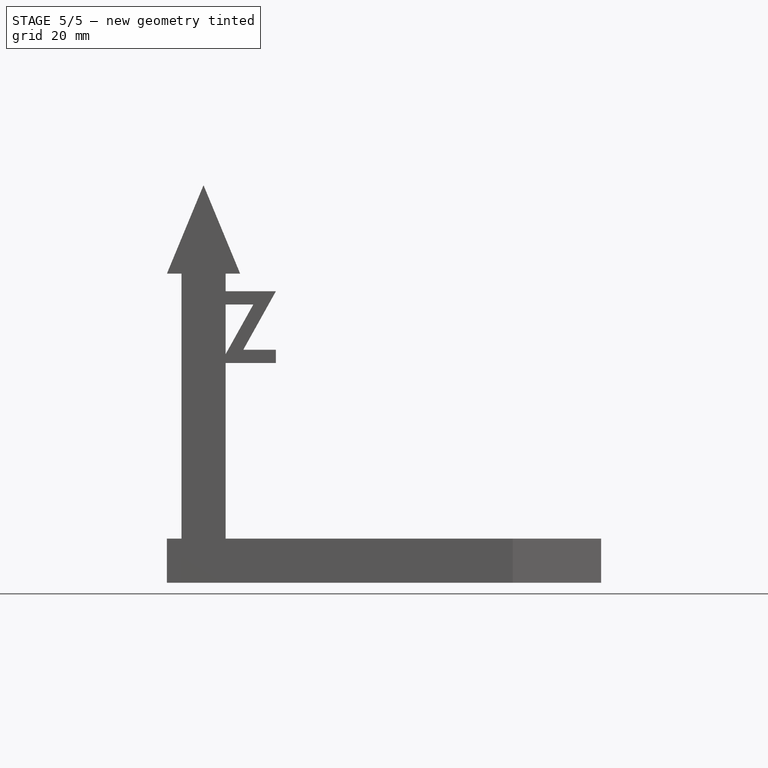
[diagram: stage 5 of 5 — front view after this stage's code; geometry added in this stage tinted green]
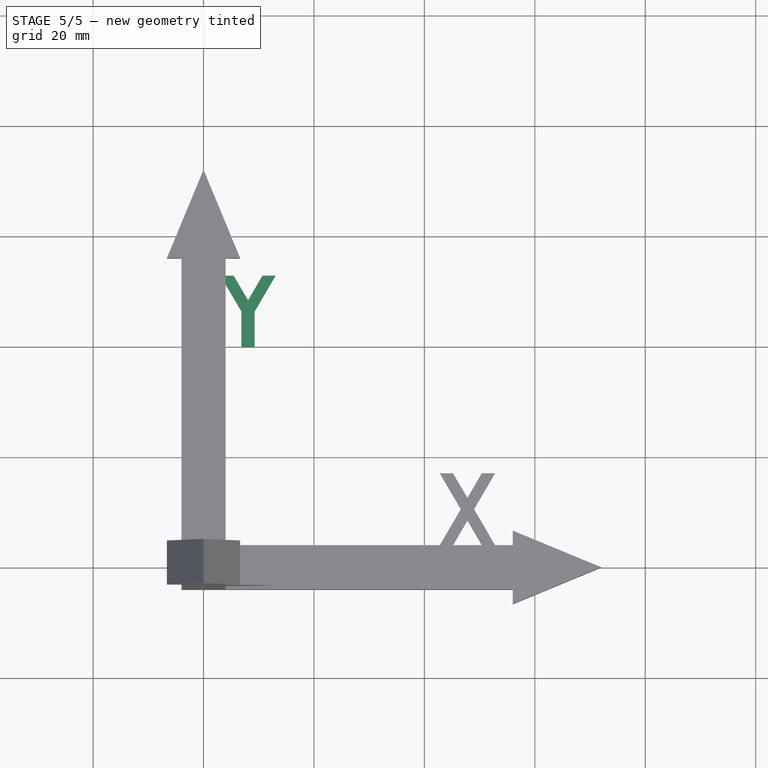
[diagram: stage 5 of 5 — top view after this stage's code; geometry added in this stage tinted green]
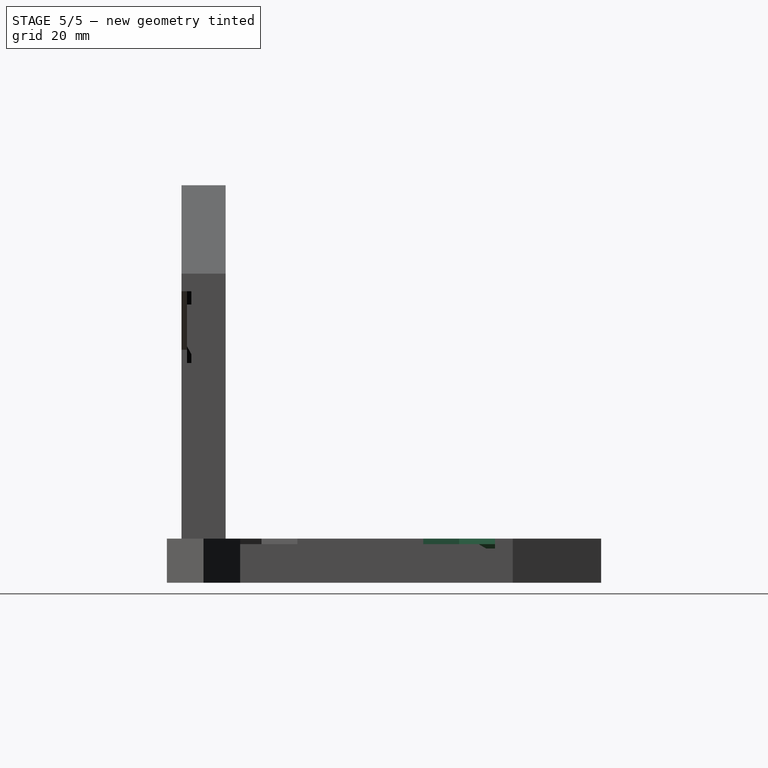
[diagram: stage 5 of 5 — right view after this stage's code; geometry added in this stage tinted green]
FEATURE [Sketcher::SketchObject] Sketch004  label="Sketch-Y-letter"
  AttachmentOffset = pos=(0,0,8) rot=(0,0,1;0rad)
  ExternalGeometry = -> [Pad001]
  FullyConstrained = false
  MapMode = 5
  Placement = pos=(0,0,8) rot=(0,0,1;0rad)
  Support = -> [XY_Plane001]
  sketch-geometry (20):
    g0: LineSegment StartX=3.06462 StartY=52.8 StartZ=0 EndX=13.0646 EndY=52.8 EndZ=0
    g1: LineSegment StartX=13.0646 StartY=52.8 StartZ=0 EndX=13.0646 EndY=39.8 EndZ=0
    g2: LineSegment StartX=13.0646 StartY=39.8 StartZ=0 EndX=3.06462 EndY=39.8 EndZ=0
    g3: LineSegment StartX=3.06462 StartY=39.8 StartZ=0 EndX=3.06462 EndY=52.8 EndZ=0
    g4: LineSegment StartX=8.06462 StartY=52.8 StartZ=0 EndX=8.06462 EndY=39.8 EndZ=0
    g5: LineSegment StartX=3.06462 StartY=52.8 StartZ=0 EndX=6.86462 EndY=46.3 EndZ=0
    g6: LineSegment StartX=6.86462 StartY=46.3 StartZ=0 EndX=6.86462 EndY=39.8 EndZ=0
    g7: LineSegment StartX=6.86462 StartY=39.8 StartZ=0 EndX=3.06462 EndY=39.8 EndZ=0
    g8: LineSegment StartX=3.06462 StartY=39.8 StartZ=0 EndX=3.06462 EndY=52.8 EndZ=0
    g9: LineSegment StartX=5.46462 StartY=52.8 StartZ=0 EndX=8.06462 EndY=48.3526 EndZ=0
    g10: LineSegment StartX=8.06462 StartY=48.3526 StartZ=0 EndX=10.6646 EndY=52.8 EndZ=0
    g11: LineSegment StartX=13.0646 StartY=52.8 StartZ=0 EndX=9.26462 EndY=46.3 EndZ=0
    g12: LineSegment StartX=9.26462 StartY=46.3 StartZ=0 EndX=9.26462 EndY=39.8 EndZ=0
    g13: LineSegment StartX=9.26462 StartY=39.8 StartZ=0 EndX=13.0646 EndY=39.8 EndZ=0
    g14: LineSegment StartX=13.0646 StartY=39.8 StartZ=0 EndX=13.0646 EndY=52.8 EndZ=0
    g15: LineSegment StartX=10.6646 StartY=52.8 StartZ=0 EndX=13.0646 EndY=52.8 EndZ=0
    g16: LineSegment StartX=6.86462 StartY=39.8 StartZ=0 EndX=9.26462 EndY=39.8 EndZ=0
    g17: LineSegment StartX=13.0646 StartY=52.8 StartZ=0 EndX=5.46462 EndY=39.8 EndZ=0
    g18: LineSegment StartX=3.06462 StartY=52.8 StartZ=0 EndX=5.46462 EndY=52.8 EndZ=0
    g19: GeomPoint X=4 Y=51.2 Z=0
  constraints (52):
    c: Coincident(g0,g1)
    c: Coincident(g1,g2)
    c: Coincident(g2,g3)
    c: Coincident(g3,g0)
    c: Horizontal(g0)
    c: Horizontal(g2)
    c: Vertical(g1)
    c: Vertical(g3)
    c: DistanceX(g0,g0) = 10
    c: DistanceY(g1,g1) = 13
    c: PointOnObject(g4,g2)
    c: Vertical(g4)
    c: Symmetric(g0,g0,g4)
    c: Coincident(g5,g6)
    c: PointOnObject(g6,g2)
    c: Vertical(g6)
    c: Coincident(g6,g7)
    c: Coincident(g7,g2)
    c: Coincident(g7,g8)
    c: Coincident(g8,g0)
    c: PointOnObject(g9,g4)
    c: Coincident(g9,g10)
    c: PointOnObject(g11,g0)
    c: Coincident(g11,g12)
    c: Coincident(g12,g13)
    c: Coincident(g13,g1)
    c: Coincident(g13,g14)
    c: Coincident(g14,g11)
    c: Vertical(g14)
    c: Symmetric(g6,g12,g4)
    c: Parallel(g5,g9)
    c: Parallel(g11,g10)
    c: DistanceX(g6,g12) = 2.4
    c: Coincident(g15,g10)
    c: Coincident(g15,g11)
    c: Coincident(g16,g6)
    c: Coincident(g16,g12)
    c: DistanceY(g0,g-3) = 3.2
    c: Coincident(g17,g11)
    c: PointOnObject(g17,g2)
    c: DistanceX(g2,g17) = 2.4
    c: PointOnObject(g11,g17)
    c: Horizontal(g15)
    c: DistanceX(g15,g15) = 2.4
    c: Symmetric(g5,g11,g4)
    c: PointOnObject(g5,g3)
    c: Symmetric(g9,g10,g4)
    c: Coincident(g18,g5)
    c: Coincident(g18,g9)
    c: PointOnObject(g19,g5)
    c: PointOnObject(g19,g-3)
    c: DistanceY(g19,g5) = 1.6
FEATURE [PartDesign::Pad] Pad004  label="Y-letter"
  BaseFeature = -> Pad001
  Direction = (1,1,1)
  Length = 1
  Length2 = 100
  Profile = -> Sketch004
  Refine = true
  Reversed = true
  Type = 0
FEATURE [PartDesign::Chamfer] Chamfer  label="Chamfer-Y"
  Angle = 45
  Base = -> Pad004 [Edge5]
  BaseFeature = -> Pad004
  ChamferType = 0
  FlipDirection = false
  Size = 0.8
  Size2 = 1
  SupportTransform = true
FEATURE [Sketcher::SketchObject] Sketch011  label="Sketch-joint-box"
  FullyConstrained = true
  MapMode = 5
  Support = -> [XY_Plane003]
  sketch-geometry (4):
    g0: LineSegment StartX=-4 StartY=4 StartZ=0 EndX=4 EndY=4 EndZ=0
    g1: LineSegment StartX=4 StartY=4 StartZ=0 EndX=4 EndY=-4 EndZ=0
    g2: LineSegment StartX=4 StartY=-4 StartZ=0 EndX=-4 EndY=-4 EndZ=0
    g3: LineSegment StartX=-4 StartY=-4 StartZ=0 EndX=-4 EndY=4 EndZ=0
  constraints (11):
    c: Coincident(g0,g1)
    c: Coincident(g1,g2)
    c: Coincident(g2,g3)
    c: Coincident(g3,g0)
    c: Horizontal(g0)
    c: Horizontal(g2)
    c: Vertical(g1)
    c: Vertical(g3)
    c: Symmetric(g0,g1,g-1)
    c: Equal(g0,g3)
    c: DistanceX(g0,g0) = 8
FEATURE [Sketcher::SketchObject] Sketch014  label="Sketch-socket-Y"
  FullyConstrained = true
  MapMode = 5
  Placement = pos=(0,0,0) rot=(1,0,0;1.5708rad)
  Support = -> [Chamfer]
  sketch-geometry (5):
    g0: LineSegment StartX=0.7 StartY=0 StartZ=0 EndX=2.07301 EndY=4.42208 EndZ=0
    g1: LineSegment StartX=1.5 StartY=5.2 StartZ=0 EndX=-2.1 EndY=5.2 EndZ=0
    g2: LineSegment StartX=-2.1 StartY=5.2 StartZ=0 EndX=-2.1 EndY=0 EndZ=0
    g3: LineSegment StartX=-2.1 StartY=0 StartZ=0 EndX=0.7 EndY=0 EndZ=0
    g4: ArcOfCircle CenterX=1.5 CenterY=4.6 CenterZ=0 NormalX=0 NormalY=0 NormalZ=1 AngleXU=0 Radius=0.6 StartAngle=5.98213 EndAngle=7.85398
  constraints (14):
    c: Coincident(g1,g2)
    c: Coincident(g2,g3)
    c: Coincident(g3,g0)
    c: PointOnObject(g0,g-1)
    c: Vertical(g2)
    c: Horizontal(g3)
    c: Tangent(g1,g4) = -1.5708
    c: Tangent(g0,g4) = -1.5708
    c: Horizontal(g1)
    c: DistanceX(g3,g3) = 2.8
    c: DistanceY(g2,g2) = 5.2
    c: Radius(g4) = 0.6
    c: DistanceX(g1,g1) = 3.6
    c: DistanceX(g2) = -2.1
FEATURE [PartDesign::Pocket] Pocket003  label="Pocket-socket-Y"
  BaseFeature = -> Chamfer
  Length = 6.2
  Length2 = 100
  Profile = -> Sketch014
  Refine = true
  Type = 0
FEATURE [PartDesign::Chamfer] Chamfer004002002002004  label="Chamfer-socket-Y"
  Angle = 45
  Base = -> Pocket003 [Edge35,Edge34]
  BaseFeature = -> Pocket003
  ChamferType = 1
  FlipDirection = false
  Size = 0.4
  Size2 = 0.8
  SupportTransform = false
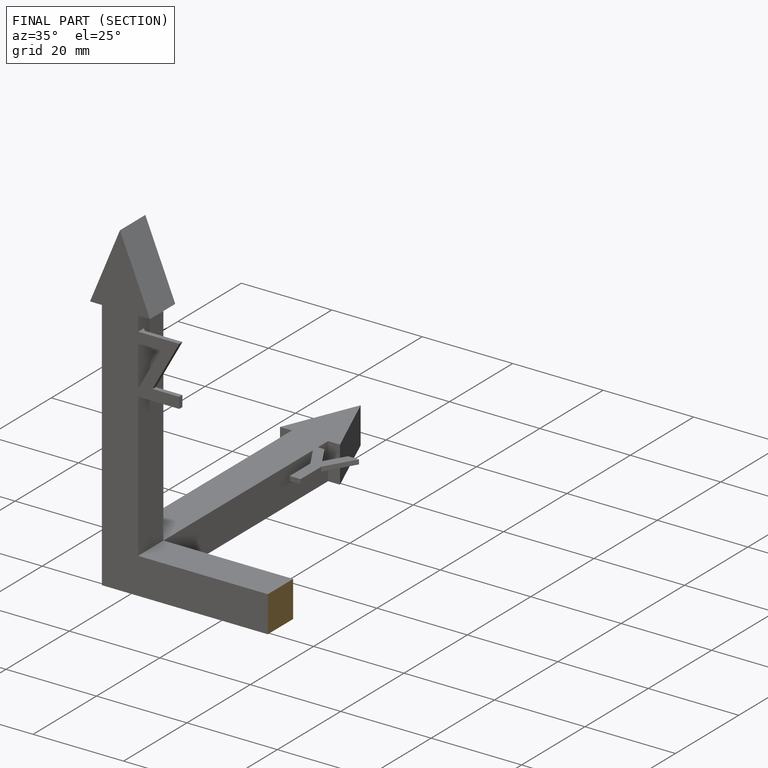
[diagram: finished part — half-section view (interior)]
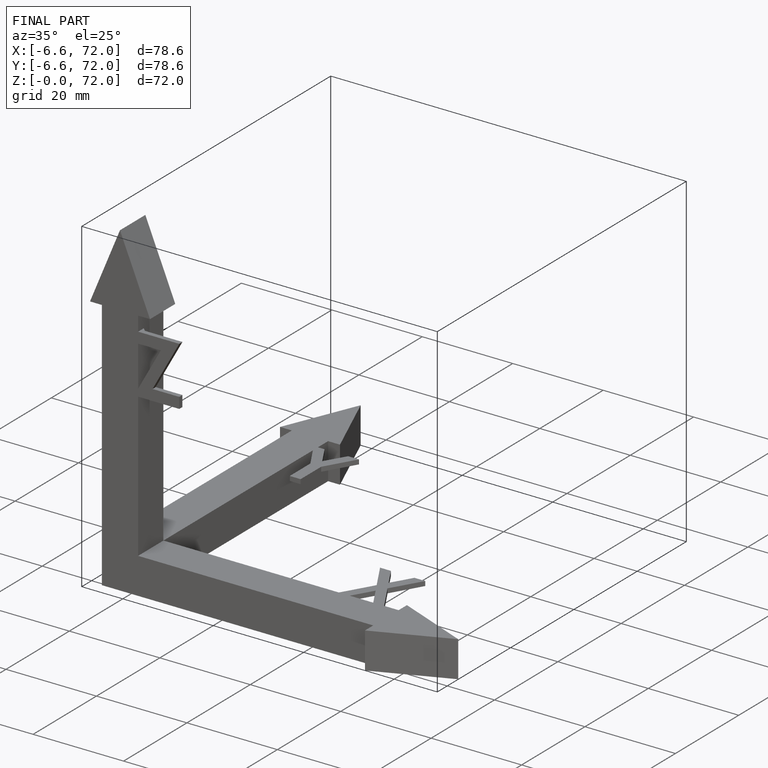
[diagram: finished part — iso view with bounding-box wireframe]
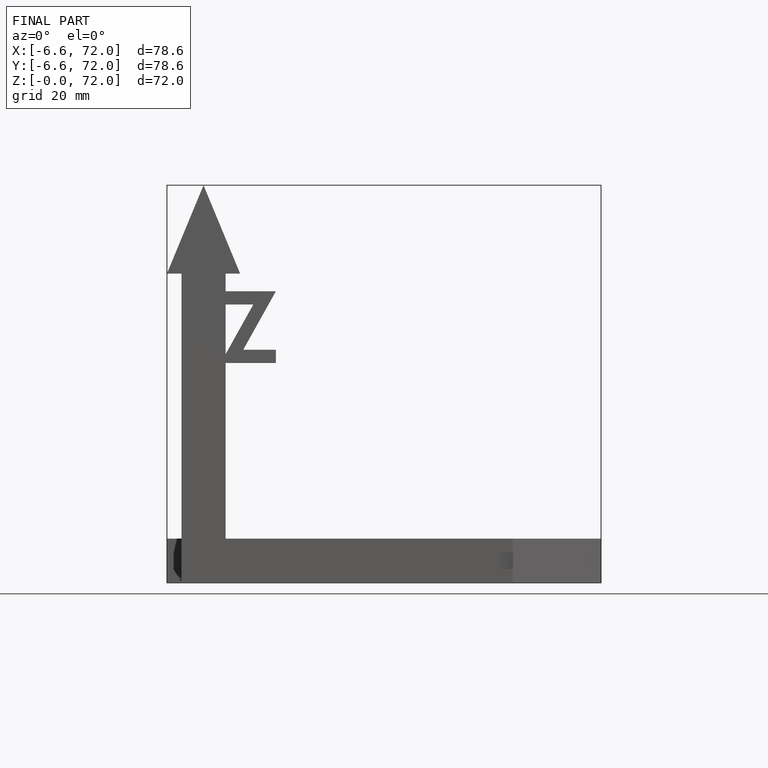
[diagram: finished part — front view with bounding-box wireframe]
